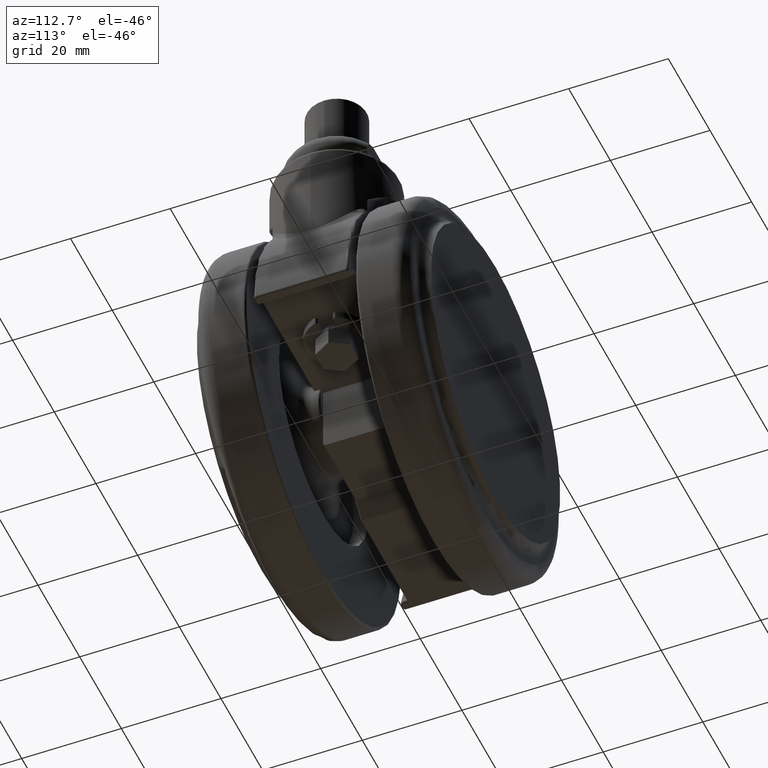
[diagram: clean part render]
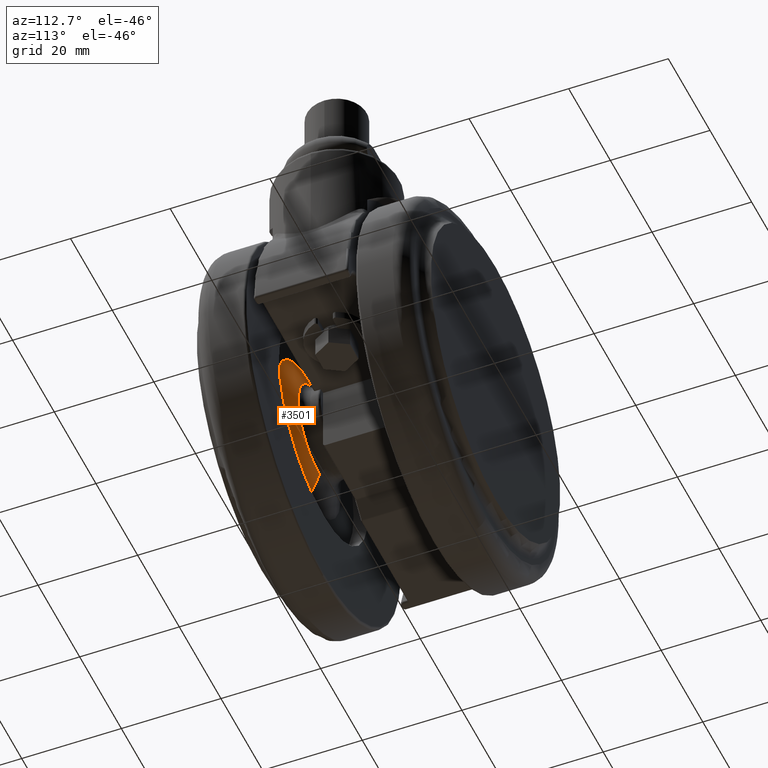
[diagram: same view with one face highlighted and labeled with its STEP entity id]
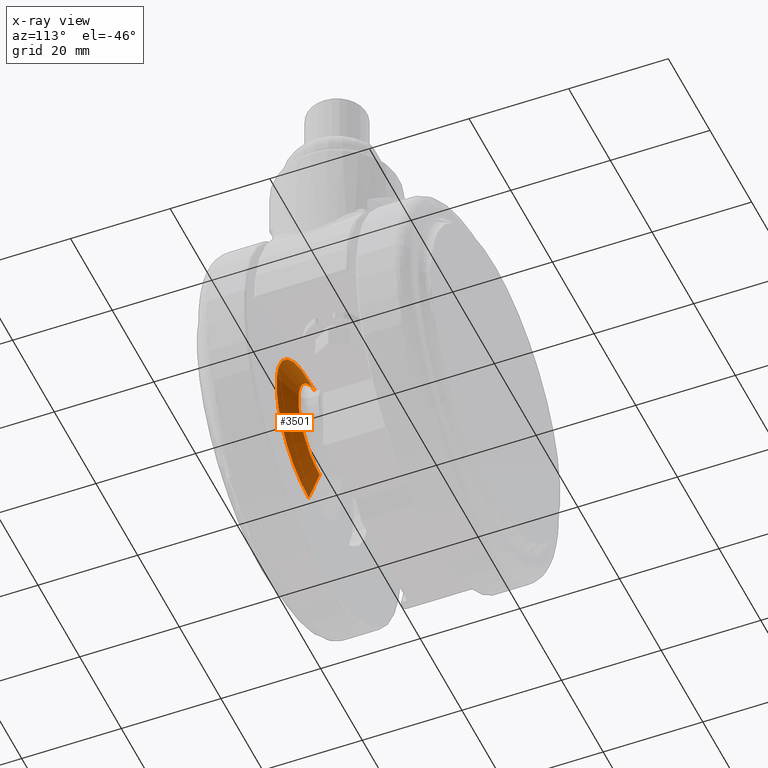
[diagram: x-ray of the same camera — body ghosted, the highlighted face saturated]
A machine part, auxiliary view. The second image highlights one B-rep face of the part: STEP entity #3501.
The next image is the same camera in x-ray: the body ghosted, the highlighted face saturated — about 0% of this face is hidden behind the body in this view.
In plain terms, the highlighted conical surface has half-angle 67.536 deg.
Its self-contained STEP definition (entity closure, byte-faithful):
#256 = FACE_OUTER_BOUND ( 'NONE', #6599, .T. ) ;
#322 = DIRECTION ( 'NONE',  ( 1.131719590282663600E-016, -0.3821043699168795200, 0.9241191754803188600 ) ) ;
#405 = VERTEX_POINT ( 'NONE', #977 ) ;
#426 = AXIS2_PLACEMENT_3D ( 'NONE', #1128, #5868, #1815 ) ;
#807 = AXIS2_PLACEMENT_3D ( 'NONE', #6729, #6757, #1332 ) ;
#977 = CARTESIAN_POINT ( 'NONE',  ( -19.99999999999999600, -14.00000000000000000, -25.00000000000000000 ) ) ;
#1031 = VERTEX_POINT ( 'NONE', #7216 ) ;
#1128 = CARTESIAN_POINT ( 'NONE',  ( -20.00000000000000000, -14.00000000000000000, -40.50000000000000000 ) ) ;
#1332 = DIRECTION ( 'NONE',  ( 0.0000000000000000000, 0.0000000000000000000, -1.000000000000000000 ) ) ;
#1461 = EDGE_CURVE ( 'NONE', #4857, #1031, #2736, .T. ) ;
#1545 = CARTESIAN_POINT ( 'NONE',  ( -20.00000000000000000, -14.00000000000000000, -56.00000000000000000 ) ) ;
#1815 = DIRECTION ( 'NONE',  ( 0.0000000000000000000, 0.0000000000000000000, -1.000000000000000000 ) ) ;
#2338 = EDGE_CURVE ( 'NONE', #4857, #8086, #3362, .T. ) ;
#2736 = LINE ( 'NONE', #1545, #7874 ) ;
#3041 = CARTESIAN_POINT ( 'NONE',  ( -19.99999999999999600, -14.00000000000000000, -25.00000000000000000 ) ) ;
#3362 = CIRCLE ( 'NONE', #3955, 10.23579126016620200 ) ;
#3501 = ADVANCED_FACE ( 'NONE', ( #256 ), #5236, .T. ) ;
#3575 = VECTOR ( 'NONE', #322, 1000.000000000000100 ) ;
#3611 = CARTESIAN_POINT ( 'NONE',  ( -20.00000000000000000, -11.82335740127932100, -40.50000000000000000 ) ) ;
#3750 = ORIENTED_EDGE ( 'NONE', *, *, #2338, .T. ) ;
#3955 = AXIS2_PLACEMENT_3D ( 'NONE', #3611, #8279, #4299 ) ;
#4299 = DIRECTION ( 'NONE',  ( 0.0000000000000000000, 0.0000000000000000000, -1.000000000000000000 ) ) ;
#4559 = CARTESIAN_POINT ( 'NONE',  ( -19.99999999999999600, -11.82335740127932100, -30.26420873983379800 ) ) ;
#4768 = ORIENTED_EDGE ( 'NONE', *, *, #1461, .F. ) ;
#4857 = VERTEX_POINT ( 'NONE', #7626 ) ;
#5236 = CONICAL_SURFACE ( 'NONE', #807, 15.50000000000000000, 1.178723936475072600 ) ;
#5354 = LINE ( 'NONE', #3041, #3575 ) ;
#5756 = ORIENTED_EDGE ( 'NONE', *, *, #5899, .F. ) ;
#5868 = DIRECTION ( 'NONE',  ( 0.0000000000000000000, -1.000000000000000000, 0.0000000000000000000 ) ) ;
#5899 = EDGE_CURVE ( 'NONE', #1031, #405, #7664, .T. ) ;
#6599 = EDGE_LOOP ( 'NONE', ( #3750, #8026, #5756, #4768 ) ) ;
#6729 = CARTESIAN_POINT ( 'NONE',  ( -20.00000000000000000, -14.00000000000000000, -40.50000000000000000 ) ) ;
#6757 = DIRECTION ( 'NONE',  ( 0.0000000000000000000, -1.000000000000000000, 0.0000000000000000000 ) ) ;
#7216 = CARTESIAN_POINT ( 'NONE',  ( -20.00000000000000000, -14.00000000000000000, -56.00000000000000000 ) ) ;
#7626 = CARTESIAN_POINT ( 'NONE',  ( -20.00000000000000000, -11.82335740127932100, -50.73579126016620200 ) ) ;
#7664 = CIRCLE ( 'NONE', #426, 15.50000000000000000 ) ;
#7815 = DIRECTION ( 'NONE',  ( 0.0000000000000000000, -0.3821043699168795200, -0.9241191754803188600 ) ) ;
#7874 = VECTOR ( 'NONE', #7815, 1000.000000000000100 ) ;
#8016 = EDGE_CURVE ( 'NONE', #8086, #405, #5354, .T. ) ;
#8026 = ORIENTED_EDGE ( 'NONE', *, *, #8016, .T. ) ;
#8086 = VERTEX_POINT ( 'NONE', #4559 ) ;
#8279 = DIRECTION ( 'NONE',  ( 0.0000000000000000000, -1.000000000000000000, 0.0000000000000000000 ) ) ;